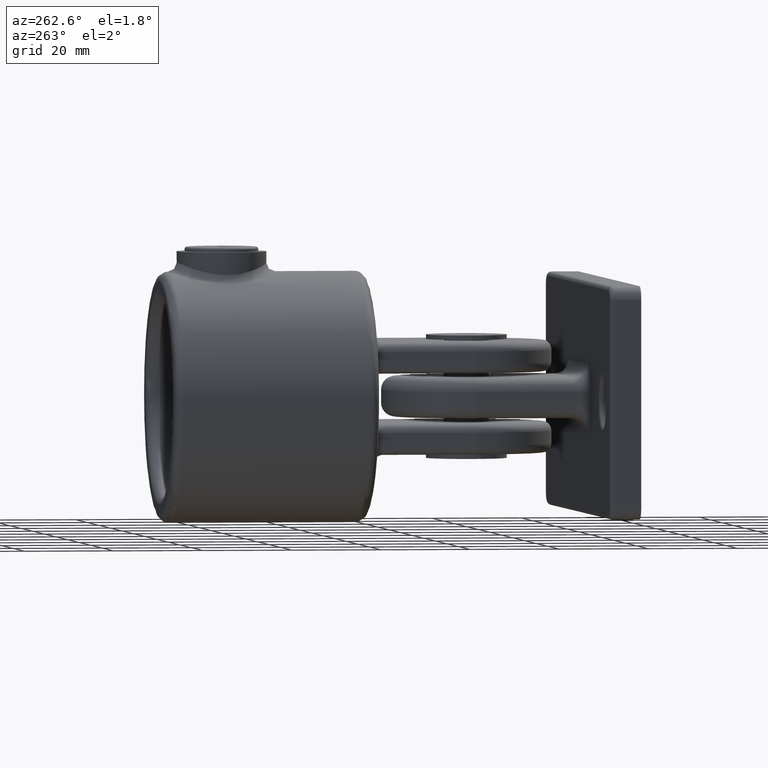
[diagram: clean part render]
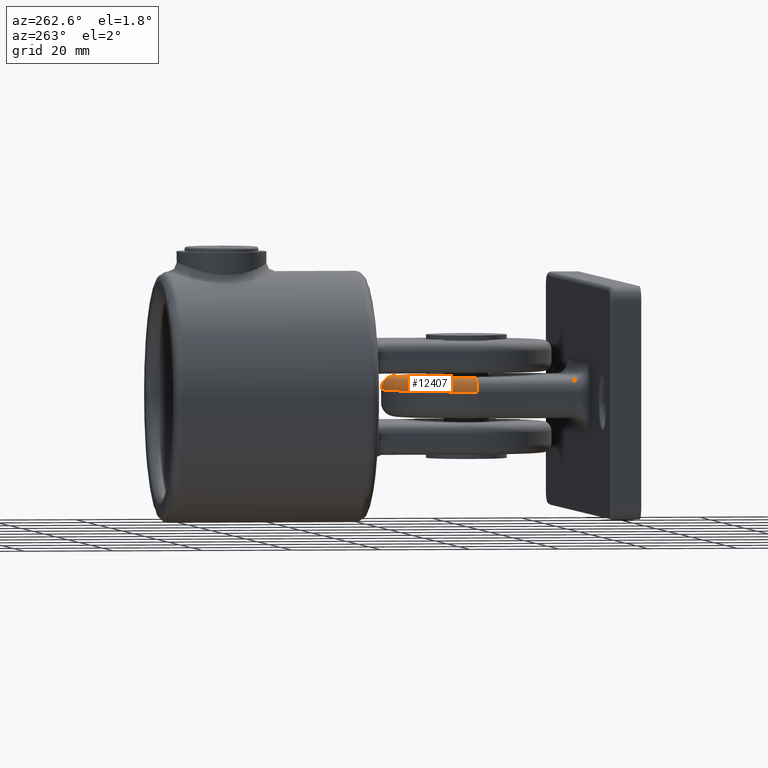
[diagram: same view with one face highlighted and labeled with its STEP entity id]
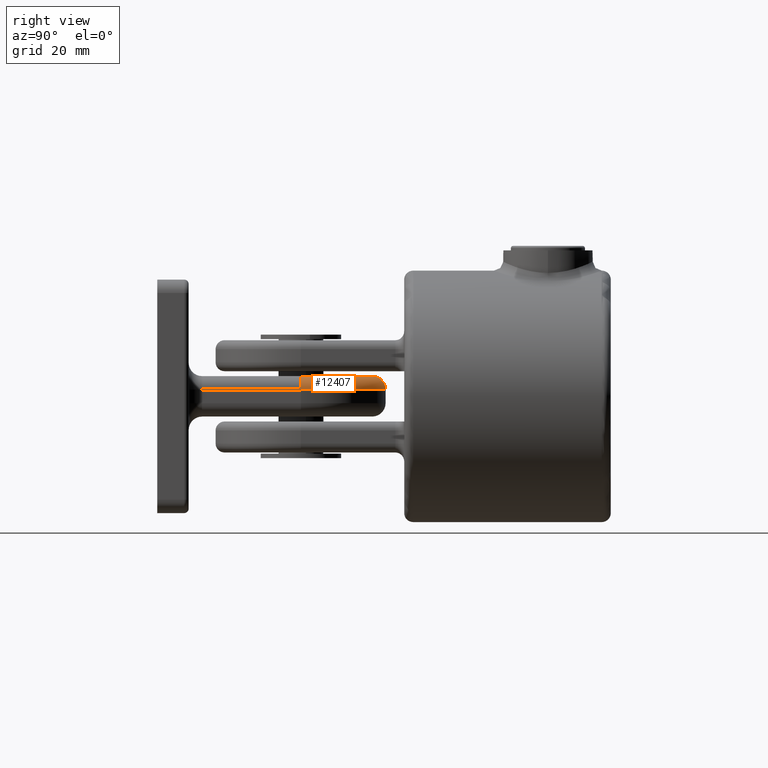
[diagram: same view with one face highlighted and labeled with its STEP entity id]
A machine part, auxiliary view. The second image highlights one B-rep face of the part: STEP entity #12407.
A second angle (right view) of the same face is appended — the face is thin or edge-on in the first view.
In plain terms, the highlighted toroidal blend (fillet) surface has major radius 16 mm and minor (blend) radius 3 mm.
Its self-contained STEP definition (entity closure, byte-faithful):
#132 = DIRECTION ( 'NONE',  ( 0.000000000000000000, -1.000000000000000000, 0.000000000000000000 ) ) ;
#454 = EDGE_CURVE ( 'NONE', #1739, #12895, #457, .T. ) ;
#457 = CIRCLE ( 'NONE', #15626, 3.000000000000000000 ) ;
#583 = CARTESIAN_POINT ( 'NONE',  ( -15.99999999999999645, 32.00000000000000711, 4.500000000000000000 ) ) ;
#621 = DIRECTION ( 'NONE',  ( 0.000000000000000000, 0.000000000000000000, 1.000000000000000000 ) ) ;
#856 = CARTESIAN_POINT ( 'NONE',  ( 0.000000000000000000, 32.00000000000000000, 1.499999999999999556 ) ) ;
#986 = EDGE_LOOP ( 'NONE', ( #12772, #1934, #12365, #2307 ) ) ;
#1310 = DIRECTION ( 'NONE',  ( 1.000000000000000000, 0.000000000000000000, 0.000000000000000000 ) ) ;
#1587 = FACE_OUTER_BOUND ( 'NONE', #986, .T. ) ;
#1739 = VERTEX_POINT ( 'NONE', #16394 ) ;
#1934 = ORIENTED_EDGE ( 'NONE', *, *, #1962, .F. ) ;
#1962 = EDGE_CURVE ( 'NONE', #14880, #12895, #11075, .T. ) ;
#1993 = CARTESIAN_POINT ( 'NONE',  ( -15.99999999999999645, 32.00000000000000711, 1.499999999999999556 ) ) ;
#2307 = ORIENTED_EDGE ( 'NONE', *, *, #9534, .F. ) ;
#3971 = CARTESIAN_POINT ( 'NONE',  ( 15.99999999999999645, 32.00000000000000711, 1.499999999999999556 ) ) ;
#4404 = DIRECTION ( 'NONE',  ( 0.000000000000000000, 1.000000000000000000, -0.000000000000000000 ) ) ;
#5089 = TOROIDAL_SURFACE ( 'NONE', #7690, 15.99999999999999645, 3.000000000000000000 ) ;
#5272 = DIRECTION ( 'NONE',  ( 0.000000000000000000, 0.000000000000000000, 1.000000000000000000 ) ) ;
#5703 = VERTEX_POINT ( 'NONE', #13519 ) ;
#5779 = DIRECTION ( 'NONE',  ( 1.000000000000000000, 0.000000000000000000, 0.000000000000000000 ) ) ;
#6957 = CARTESIAN_POINT ( 'NONE',  ( 15.99999999999999645, 32.00000000000000711, 4.500000000000000000 ) ) ;
#7626 = AXIS2_PLACEMENT_3D ( 'NONE', #3971, #132, #15708 ) ;
#7690 = AXIS2_PLACEMENT_3D ( 'NONE', #13457, #12205, #5779 ) ;
#8560 = DIRECTION ( 'NONE',  ( 1.000000000000000000, 0.000000000000000000, 0.000000000000000000 ) ) ;
#9534 = EDGE_CURVE ( 'NONE', #1739, #5703, #10335, .T. ) ;
#10335 = CIRCLE ( 'NONE', #13022, 18.99999999999999645 ) ;
#11075 = CIRCLE ( 'NONE', #11527, 15.99999999999999645 ) ;
#11527 = AXIS2_PLACEMENT_3D ( 'NONE', #15489, #5272, #1310 ) ;
#12205 = DIRECTION ( 'NONE',  ( 0.000000000000000000, 0.000000000000000000, 1.000000000000000000 ) ) ;
#12365 = ORIENTED_EDGE ( 'NONE', *, *, #14212, .F. ) ;
#12407 = ADVANCED_FACE ( 'NONE', ( #1587 ), #5089, .T. ) ;
#12772 = ORIENTED_EDGE ( 'NONE', *, *, #454, .T. ) ;
#12895 = VERTEX_POINT ( 'NONE', #583 ) ;
#13022 = AXIS2_PLACEMENT_3D ( 'NONE', #856, #16377, #8560 ) ;
#13074 = CIRCLE ( 'NONE', #7626, 3.000000000000000000 ) ;
#13457 = CARTESIAN_POINT ( 'NONE',  ( 0.000000000000000000, 32.00000000000000000, 1.499999999999999556 ) ) ;
#13519 = CARTESIAN_POINT ( 'NONE',  ( 18.99999999999999645, 32.00000000000000711, 1.499999999999999556 ) ) ;
#14212 = EDGE_CURVE ( 'NONE', #5703, #14880, #13074, .T. ) ;
#14880 = VERTEX_POINT ( 'NONE', #6957 ) ;
#15489 = CARTESIAN_POINT ( 'NONE',  ( 0.000000000000000000, 32.00000000000000000, 4.500000000000000000 ) ) ;
#15626 = AXIS2_PLACEMENT_3D ( 'NONE', #1993, #4404, #621 ) ;
#15708 = DIRECTION ( 'NONE',  ( 0.000000000000000000, 0.000000000000000000, -1.000000000000000000 ) ) ;
#16377 = DIRECTION ( 'NONE',  ( -0.000000000000000000, -0.000000000000000000, -1.000000000000000000 ) ) ;
#16394 = CARTESIAN_POINT ( 'NONE',  ( -18.99999999999999645, 32.00000000000000711, 1.499999999999999556 ) ) ;